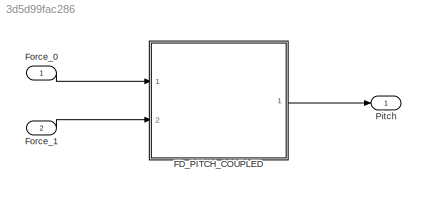
MODEL slx_3d5d99fac286
KIND model
CONFIG AbsTol = auto
CONFIG EnableMultiTasking = off
CONFIG FixedStep = auto
CONFIG MaxStep = auto
CONFIG MinStep = auto
CONFIG RelTol = 1e-3
CONFIG SampleTimeConstraint = Unconstrained
CONFIG Solver = VariableStepAuto
CONFIG SolverName = VariableStepAuto
CONFIG StartTime = 0.0
CONFIG StopTime = 10.0
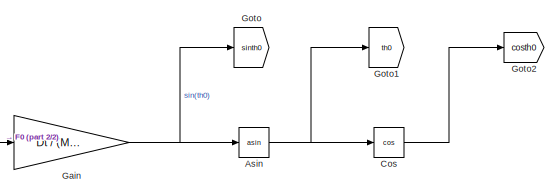
[diagram: FD_PITCH_COUPLED - part 1/2, top center region]
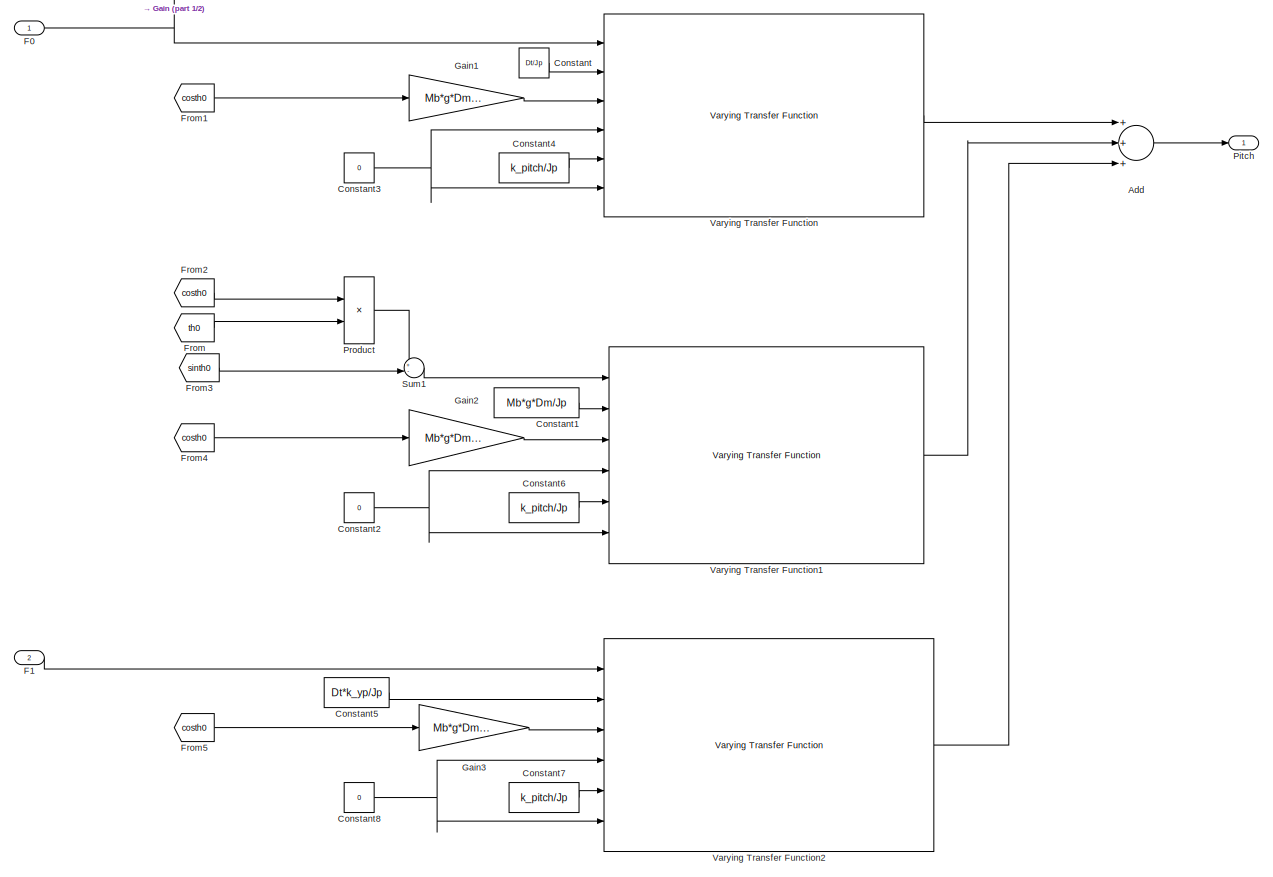
[diagram: FD_PITCH_COUPLED - part 2/2, most of the canvas]
BLOCK [SubSystem] FD_PITCH_COUPLED
  Ports = [2, 1]
  RequestExecContextInheritance = off
BLOCK [Sum] FD_PITCH_COUPLED/Add
  InputSameDT = off
  Inputs = +++
  OutDataTypeStr = Inherit: Inherit via internal rule
  Ports = [3, 1]
  SaturateOnIntegerOverflow = off
BLOCK [Trigonometry] FD_PITCH_COUPLED/Asin
  Operator = asin
  Ports = [1, 1]
BLOCK [Constant] FD_PITCH_COUPLED/Constant
  SampleTime = 0
  Value = Dt/Jp
BLOCK [Constant] FD_PITCH_COUPLED/Constant1
  SampleTime = 0
  Value = Mb*g*Dm/Jp
BLOCK [Constant] FD_PITCH_COUPLED/Constant2
  SampleTime = 0
  Value = 0
BLOCK [Constant] FD_PITCH_COUPLED/Constant3
  SampleTime = 0
  Value = 0
BLOCK [Constant] FD_PITCH_COUPLED/Constant4
  SampleTime = 0
  Value = k_pitch/Jp
BLOCK [Constant] FD_PITCH_COUPLED/Constant5
  SampleTime = 0
  Value = Dt*k_yp/Jp
BLOCK [Constant] FD_PITCH_COUPLED/Constant6
  SampleTime = 0
  Value = k_pitch/Jp
BLOCK [Constant] FD_PITCH_COUPLED/Constant7
  SampleTime = 0
  Value = k_pitch/Jp
BLOCK [Constant] FD_PITCH_COUPLED/Constant8
  SampleTime = 0
  Value = 0
BLOCK [Trigonometry] FD_PITCH_COUPLED/Cos
  Operator = cos
  Ports = [1, 1]
BLOCK [Inport] FD_PITCH_COUPLED/F0
  IconDisplay = Port number
BLOCK [Inport] FD_PITCH_COUPLED/F1
  IconDisplay = Port number
  Port = 2
BLOCK [From] FD_PITCH_COUPLED/From
  GotoTag = th0
BLOCK [From] FD_PITCH_COUPLED/From1
  GotoTag = costh0
BLOCK [From] FD_PITCH_COUPLED/From2
  GotoTag = costh0
BLOCK [From] FD_PITCH_COUPLED/From3
  GotoTag = sinth0
BLOCK [From] FD_PITCH_COUPLED/From4
  GotoTag = costh0
BLOCK [From] FD_PITCH_COUPLED/From5
  GotoTag = costh0
BLOCK [Gain] FD_PITCH_COUPLED/Gain
  Gain = Dt / (Mb*g*Dm)
  OutDataTypeStr = Inherit: Inherit via internal rule
  ParamDataTypeStr = Inherit: Inherit via internal rule
  SaturateOnIntegerOverflow = off
BLOCK [Gain] FD_PITCH_COUPLED/Gain1
  Gain = Mb*g*Dm/Jp
  OutDataTypeStr = Inherit: Inherit via internal rule
  ParamDataTypeStr = Inherit: Inherit via internal rule
  SaturateOnIntegerOverflow = off
BLOCK [Gain] FD_PITCH_COUPLED/Gain2
  Gain = Mb*g*Dm/Jp
  OutDataTypeStr = Inherit: Inherit via internal rule
  ParamDataTypeStr = Inherit: Inherit via internal rule
  SaturateOnIntegerOverflow = off
BLOCK [Gain] FD_PITCH_COUPLED/Gain3
  Gain = Mb*g*Dm/Jp
  OutDataTypeStr = Inherit: Inherit via internal rule
  ParamDataTypeStr = Inherit: Inherit via internal rule
  SaturateOnIntegerOverflow = off
BLOCK [Goto] FD_PITCH_COUPLED/Goto
  GotoTag = sinth0
BLOCK [Goto] FD_PITCH_COUPLED/Goto1
  GotoTag = th0
BLOCK [Goto] FD_PITCH_COUPLED/Goto2
  GotoTag = costh0
BLOCK [Outport] FD_PITCH_COUPLED/Pitch
  IconDisplay = Port number
BLOCK [Product] FD_PITCH_COUPLED/Product
  InputSameDT = off
  OutDataTypeStr = Inherit: Inherit via internal rule
  Ports = [2, 1]
  RndMeth = Floor
  SaturateOnIntegerOverflow = off
BLOCK [Sum] FD_PITCH_COUPLED/Sum1
  IconShape = round
  InputSameDT = off
  Inputs = +-|
  OutDataTypeStr = Inherit: Inherit via internal rule
  Ports = [2, 1]
  SaturateOnIntegerOverflow = off
BLOCK [Reference] FD_PITCH_COUPLED/Varying Transfer Function  REF=cstblocks/Linear Parameter Varying/Varying Transfer Function
  Ports = [6, 1]
  SourceBlock = cstblocks/Linear Parameter Varying/Varying Transfer Function
  SourceProductBaseCode = CT
  SourceProductName = Control System Toolbox
  SourceType = Varying Transfer Function
BLOCK [Reference] FD_PITCH_COUPLED/Varying Transfer Function1  REF=cstblocks/Linear Parameter Varying/Varying Transfer Function
  Ports = [6, 1]
  SourceBlock = cstblocks/Linear Parameter Varying/Varying Transfer Function
  SourceProductBaseCode = CT
  SourceProductName = Control System Toolbox
  SourceType = Varying Transfer Function
BLOCK [Reference] FD_PITCH_COUPLED/Varying Transfer Function2  REF=cstblocks/Linear Parameter Varying/Varying Transfer Function
  Ports = [6, 1]
  SourceBlock = cstblocks/Linear Parameter Varying/Varying Transfer Function
  SourceProductBaseCode = CT
  SourceProductName = Control System Toolbox
  SourceType = Varying Transfer Function
BLOCK [Inport] Force_0
  IconDisplay = Port number
BLOCK [Inport] Force_1
  IconDisplay = Port number
  Port = 2
BLOCK [Outport] Pitch
  IconDisplay = Port number
LINE FD_PITCH_COUPLED/Add:1 -> FD_PITCH_COUPLED/Pitch:1
NET FD_PITCH_COUPLED/Asin:1 -> FD_PITCH_COUPLED/Cos:1, FD_PITCH_COUPLED/Goto1:1
LINE FD_PITCH_COUPLED/Constant1:1 -> FD_PITCH_COUPLED/Varying Transfer Function1:2
NET FD_PITCH_COUPLED/Constant2:1 -> FD_PITCH_COUPLED/Varying Transfer Function1:4, FD_PITCH_COUPLED/Varying Transfer Function1:6
NET FD_PITCH_COUPLED/Constant3:1 -> FD_PITCH_COUPLED/Varying Transfer Function:4, FD_PITCH_COUPLED/Varying Transfer Function:6
LINE FD_PITCH_COUPLED/Constant4:1 -> FD_PITCH_COUPLED/Varying Transfer Function:5
LINE FD_PITCH_COUPLED/Constant5:1 -> FD_PITCH_COUPLED/Varying Transfer Function2:2
LINE FD_PITCH_COUPLED/Constant6:1 -> FD_PITCH_COUPLED/Varying Transfer Function1:5
LINE FD_PITCH_COUPLED/Constant7:1 -> FD_PITCH_COUPLED/Varying Transfer Function2:5
NET FD_PITCH_COUPLED/Constant8:1 -> FD_PITCH_COUPLED/Varying Transfer Function2:4, FD_PITCH_COUPLED/Varying Transfer Function2:6
LINE FD_PITCH_COUPLED/Constant:1 -> FD_PITCH_COUPLED/Varying Transfer Function:2
LINE FD_PITCH_COUPLED/Cos:1 -> FD_PITCH_COUPLED/Goto2:1
NET FD_PITCH_COUPLED/F0:1 -> FD_PITCH_COUPLED/Gain:1, FD_PITCH_COUPLED/Varying Transfer Function:1
LINE FD_PITCH_COUPLED/F1:1 -> FD_PITCH_COUPLED/Varying Transfer Function2:1
LINE FD_PITCH_COUPLED/From1:1 -> FD_PITCH_COUPLED/Gain1:1
LINE FD_PITCH_COUPLED/From2:1 -> FD_PITCH_COUPLED/Product:1
LINE FD_PITCH_COUPLED/From3:1 -> FD_PITCH_COUPLED/Sum1:2
LINE FD_PITCH_COUPLED/From4:1 -> FD_PITCH_COUPLED/Gain2:1
LINE FD_PITCH_COUPLED/From5:1 -> FD_PITCH_COUPLED/Gain3:1
LINE FD_PITCH_COUPLED/From:1 -> FD_PITCH_COUPLED/Product:2
LINE FD_PITCH_COUPLED/Gain1:1 -> FD_PITCH_COUPLED/Varying Transfer Function:3
LINE FD_PITCH_COUPLED/Gain2:1 -> FD_PITCH_COUPLED/Varying Transfer Function1:3
LINE FD_PITCH_COUPLED/Gain3:1 -> FD_PITCH_COUPLED/Varying Transfer Function2:3
NET FD_PITCH_COUPLED/Gain:1 -> FD_PITCH_COUPLED/Asin:1, FD_PITCH_COUPLED/Goto:1
LINE FD_PITCH_COUPLED/Product:1 -> FD_PITCH_COUPLED/Sum1:1
LINE FD_PITCH_COUPLED/Sum1:1 -> FD_PITCH_COUPLED/Varying Transfer Function1:1
LINE FD_PITCH_COUPLED/Varying Transfer Function1:1 -> FD_PITCH_COUPLED/Add:2
LINE FD_PITCH_COUPLED/Varying Transfer Function2:1 -> FD_PITCH_COUPLED/Add:3
LINE FD_PITCH_COUPLED/Varying Transfer Function:1 -> FD_PITCH_COUPLED/Add:1
LINE FD_PITCH_COUPLED:1 -> Pitch:1
LINE Force_0:1 -> FD_PITCH_COUPLED:1
LINE Force_1:1 -> FD_PITCH_COUPLED:2
note: NET lines group one-source signal fan-out (src -> all destinations, sorted); 1:1 wires keep LINE
